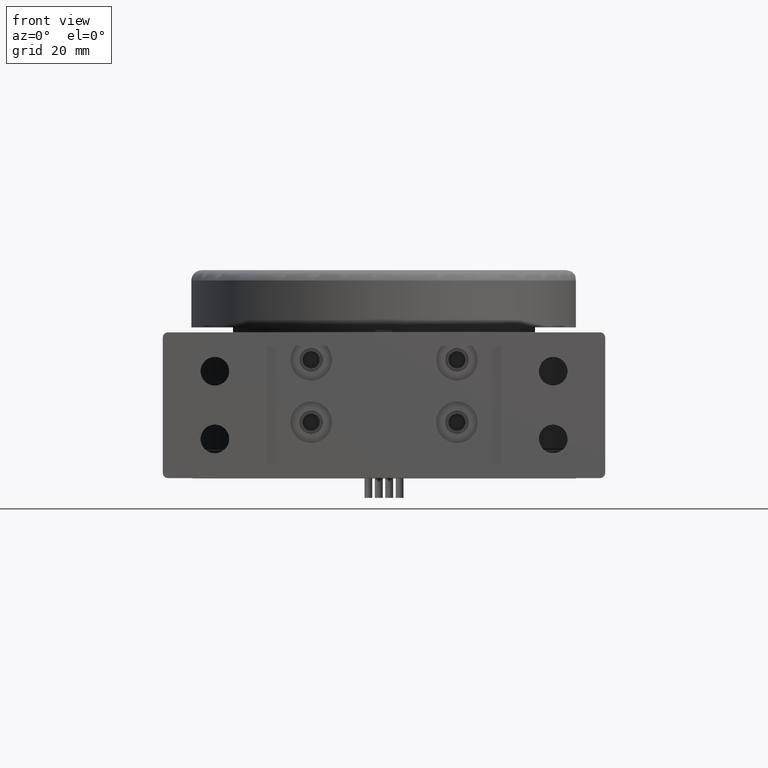
[diagram: clean part render]
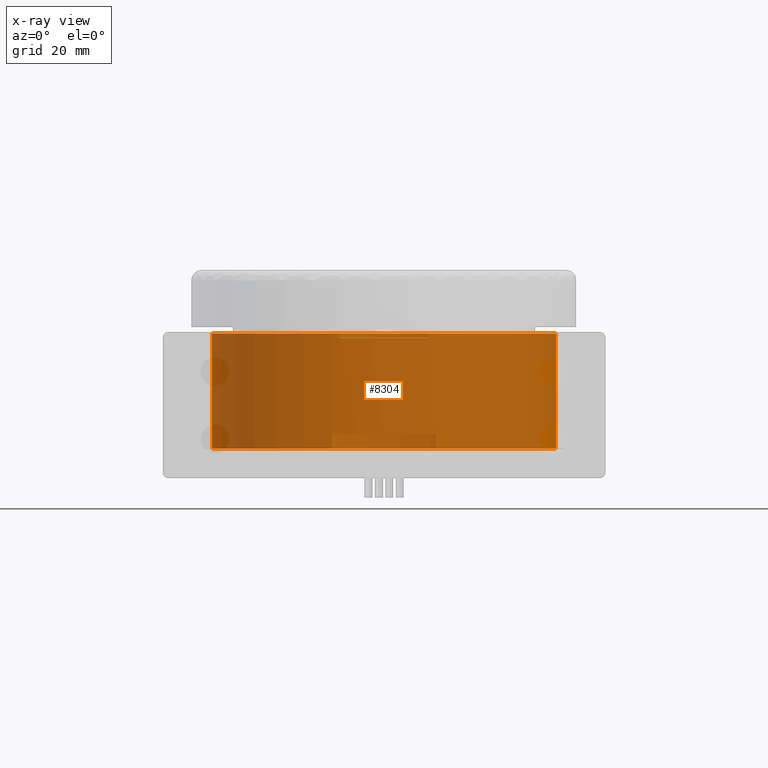
[diagram: x-ray — body ghosted, one internal face saturated and labeled with its STEP entity id]
A machine part, front view, then the same camera in x-ray: the body is ghosted and one INTERNAL B-rep face — a face not visible from any outside direction — is saturated and labeled: STEP entity #8304.
In plain terms, the highlighted cylindrical surface (bore or boss wall) has radius 33.05 mm, axis along (-0, -0, -1).
Its self-contained STEP definition (entity closure, byte-faithful):
#352 = CARTESIAN_POINT ( 'NONE',  ( -8.553969440638319099, 24.07615144114631889, 27.00000000000000000 ) ) ;
#481 = VECTOR ( 'NONE', #1057, 1000.000000000000000 ) ;
#705 = VERTEX_POINT ( 'NONE', #4482 ) ;
#753 = AXIS2_PLACEMENT_3D ( 'NONE', #5767, #8647, #9584 ) ;
#870 = LINE ( 'NONE', #5828, #481 ) ;
#979 = CARTESIAN_POINT ( 'NONE',  ( 8.553969440638324429, 24.07615144114632244, 27.00000000000000000 ) ) ;
#1057 = DIRECTION ( 'NONE',  ( 0.000000000000000000, -0.000000000000000000, 1.000000000000000000 ) ) ;
#1141 = DIRECTION ( 'NONE',  ( -1.000000000000000000, 0.000000000000000000, 0.000000000000000000 ) ) ;
#1156 = VECTOR ( 'NONE', #5952, 1000.000000000000000 ) ;
#1228 = EDGE_CURVE ( 'NONE', #2006, #9682, #11562, .T. ) ;
#1342 = EDGE_CURVE ( 'NONE', #2006, #7026, #4210, .T. ) ;
#1381 = CIRCLE ( 'NONE', #6760, 33.04999999999997584 ) ;
#1606 = VECTOR ( 'NONE', #11893, 1000.000000000000000 ) ;
#1715 = EDGE_CURVE ( 'NONE', #6247, #705, #1381, .T. ) ;
#1792 = CIRCLE ( 'NONE', #8584, 33.04999999999997584 ) ;
#1803 = DIRECTION ( 'NONE',  ( -0.000000000000000000, -0.000000000000000000, -1.000000000000000000 ) ) ;
#1868 = DIRECTION ( 'NONE',  ( 0.000000000000000000, 0.000000000000000000, -1.000000000000000000 ) ) ;
#2006 = VERTEX_POINT ( 'NONE', #8070 ) ;
#2983 = ORIENTED_EDGE ( 'NONE', *, *, #10837, .F. ) ;
#3046 = EDGE_CURVE ( 'NONE', #8344, #9682, #8066, .T. ) ;
#3136 = LINE ( 'NONE', #6699, #1156 ) ;
#3203 = CIRCLE ( 'NONE', #5603, 33.04999999999997584 ) ;
#3537 = EDGE_LOOP ( 'NONE', ( #11962, #11654, #8103, #8625 ) ) ;
#3551 = CARTESIAN_POINT ( 'NONE',  ( 10.00000000000000000, 24.49916667768933110, 8.500000000000000000 ) ) ;
#3714 = DIRECTION ( 'NONE',  ( -1.000000000000000000, 0.000000000000000000, 0.000000000000000000 ) ) ;
#3972 = VECTOR ( 'NONE', #9772, 1000.000000000000000 ) ;
#4210 = LINE ( 'NONE', #7137, #3972 ) ;
#4482 = CARTESIAN_POINT ( 'NONE',  ( 9.999999999999998224, 24.49916667768933110, 5.699999999999993960 ) ) ;
#5042 = CARTESIAN_POINT ( 'NONE',  ( 0.000000000000000000, 56.00000000000000000, 8.500000000000000000 ) ) ;
#5063 = EDGE_CURVE ( 'NONE', #6247, #6126, #3136, .T. ) ;
#5603 = AXIS2_PLACEMENT_3D ( 'NONE', #5042, #8042, #1141 ) ;
#5631 = DIRECTION ( 'NONE',  ( -1.000000000000000000, 0.000000000000000000, 0.000000000000000000 ) ) ;
#5638 = DIRECTION ( 'NONE',  ( -1.000000000000000000, 0.000000000000000000, -2.624392550645700997E-17 ) ) ;
#5767 = CARTESIAN_POINT ( 'NONE',  ( 0.000000000000000000, 56.00000000000000000, 27.80000000000002913 ) ) ;
#5784 = CARTESIAN_POINT ( 'NONE',  ( 0.000000000000000000, 56.00000000000000000, 27.00000000000000000 ) ) ;
#5828 = CARTESIAN_POINT ( 'NONE',  ( 10.00000000000000000, 24.49916667768933110, 8.500000000000000000 ) ) ;
#5952 = DIRECTION ( 'NONE',  ( 0.000000000000000000, 0.000000000000000000, 1.000000000000000000 ) ) ;
#6070 = CARTESIAN_POINT ( 'NONE',  ( -8.553969440638319099, 24.07615144114632244, 27.80000000000005400 ) ) ;
#6126 = VERTEX_POINT ( 'NONE', #8411 ) ;
#6247 = VERTEX_POINT ( 'NONE', #9656 ) ;
#6557 = CYLINDRICAL_SURFACE ( 'NONE', #9382, 33.04999999999997584 ) ;
#6699 = CARTESIAN_POINT ( 'NONE',  ( -10.00000000000000355, 24.49916667768933110, 28.00000000000000000 ) ) ;
#6760 = AXIS2_PLACEMENT_3D ( 'NONE', #10453, #1868, #5638 ) ;
#7026 = VERTEX_POINT ( 'NONE', #979 ) ;
#7137 = CARTESIAN_POINT ( 'NONE',  ( 8.553969440638329758, 24.07615144114632599, 28.00000000000000000 ) ) ;
#7160 = ORIENTED_EDGE ( 'NONE', *, *, #1342, .F. ) ;
#8042 = DIRECTION ( 'NONE',  ( 0.000000000000000000, 0.000000000000000000, 1.000000000000000000 ) ) ;
#8066 = LINE ( 'NONE', #11066, #1606 ) ;
#8070 = CARTESIAN_POINT ( 'NONE',  ( 8.553969440638322652, 24.07615144114632599, 27.80000000000003268 ) ) ;
#8103 = ORIENTED_EDGE ( 'NONE', *, *, #10420, .T. ) ;
#8304 = ADVANCED_FACE ( 'NONE', ( #11571, #9445 ), #6557, .F. ) ;
#8344 = VERTEX_POINT ( 'NONE', #352 ) ;
#8411 = CARTESIAN_POINT ( 'NONE',  ( -10.00000000000000178, 24.49916667768933110, 8.500000000000000000 ) ) ;
#8542 = ORIENTED_EDGE ( 'NONE', *, *, #3046, .F. ) ;
#8584 = AXIS2_PLACEMENT_3D ( 'NONE', #5784, #8660, #3714 ) ;
#8625 = ORIENTED_EDGE ( 'NONE', *, *, #10912, .F. ) ;
#8647 = DIRECTION ( 'NONE',  ( 0.000000000000000000, 0.000000000000000000, 1.000000000000000000 ) ) ;
#8660 = DIRECTION ( 'NONE',  ( -0.000000000000000000, -0.000000000000000000, -1.000000000000000000 ) ) ;
#9062 = ORIENTED_EDGE ( 'NONE', *, *, #1228, .T. ) ;
#9382 = AXIS2_PLACEMENT_3D ( 'NONE', #10384, #1803, #5631 ) ;
#9445 = FACE_OUTER_BOUND ( 'NONE', #9746, .T. ) ;
#9584 = DIRECTION ( 'NONE',  ( 1.000000000000000000, 0.000000000000000000, -1.049757020258280645E-16 ) ) ;
#9656 = CARTESIAN_POINT ( 'NONE',  ( -10.00000000000000000, 24.49916667768933110, 5.699999999999994849 ) ) ;
#9682 = VERTEX_POINT ( 'NONE', #6070 ) ;
#9746 = EDGE_LOOP ( 'NONE', ( #9062, #8542, #2983, #7160 ) ) ;
#9772 = DIRECTION ( 'NONE',  ( -0.000000000000000000, -0.000000000000000000, -1.000000000000000000 ) ) ;
#9850 = VERTEX_POINT ( 'NONE', #3551 ) ;
#10384 = CARTESIAN_POINT ( 'NONE',  ( 0.000000000000000000, 56.00000000000000000, 28.00000000000000000 ) ) ;
#10420 = EDGE_CURVE ( 'NONE', #705, #9850, #870, .T. ) ;
#10453 = CARTESIAN_POINT ( 'NONE',  ( 0.000000000000000000, 56.00000000000000000, 5.699999999999996625 ) ) ;
#10837 = EDGE_CURVE ( 'NONE', #7026, #8344, #1792, .T. ) ;
#10912 = EDGE_CURVE ( 'NONE', #6126, #9850, #3203, .T. ) ;
#11066 = CARTESIAN_POINT ( 'NONE',  ( -8.553969440638317323, 24.07615144114631889, 28.00000000000000000 ) ) ;
#11562 = CIRCLE ( 'NONE', #753, 33.04999999999996874 ) ;
#11571 = FACE_OUTER_BOUND ( 'NONE', #3537, .T. ) ;
#11654 = ORIENTED_EDGE ( 'NONE', *, *, #1715, .T. ) ;
#11893 = DIRECTION ( 'NONE',  ( 0.000000000000000000, 0.000000000000000000, 1.000000000000000000 ) ) ;
#11962 = ORIENTED_EDGE ( 'NONE', *, *, #5063, .F. ) ;